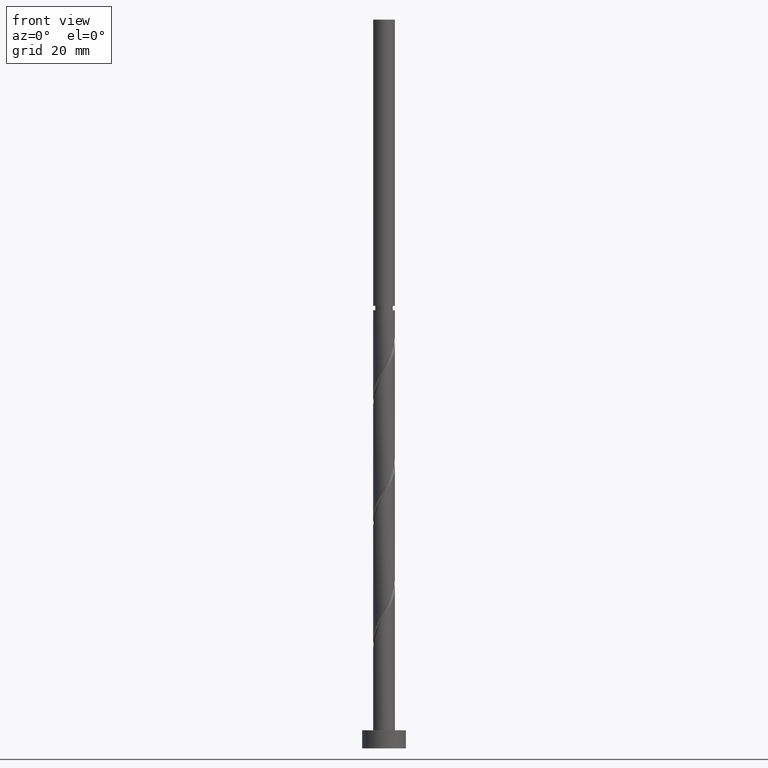
[diagram: clean part render]
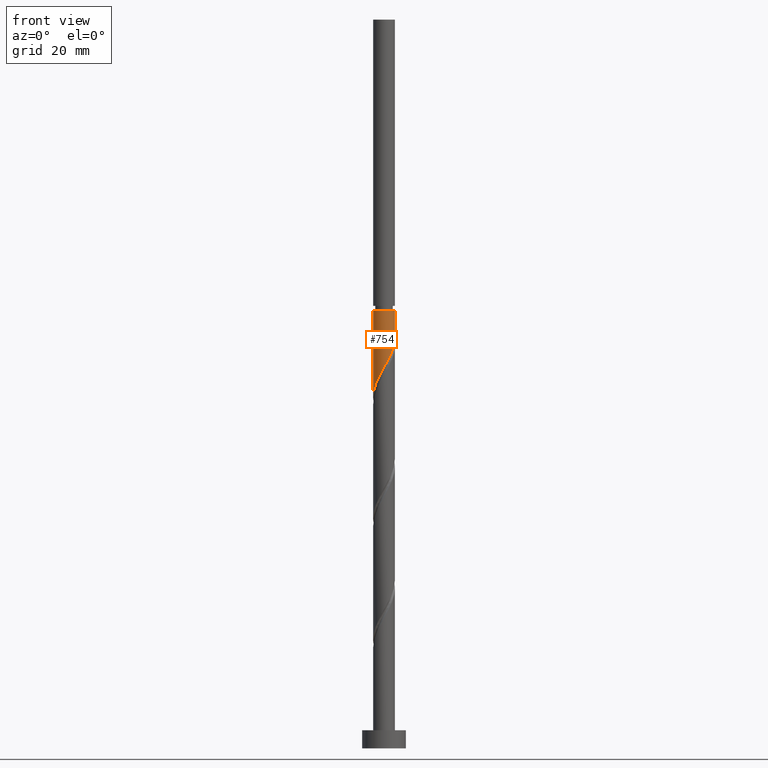
[diagram: same view with one face highlighted and labeled with its STEP entity id]
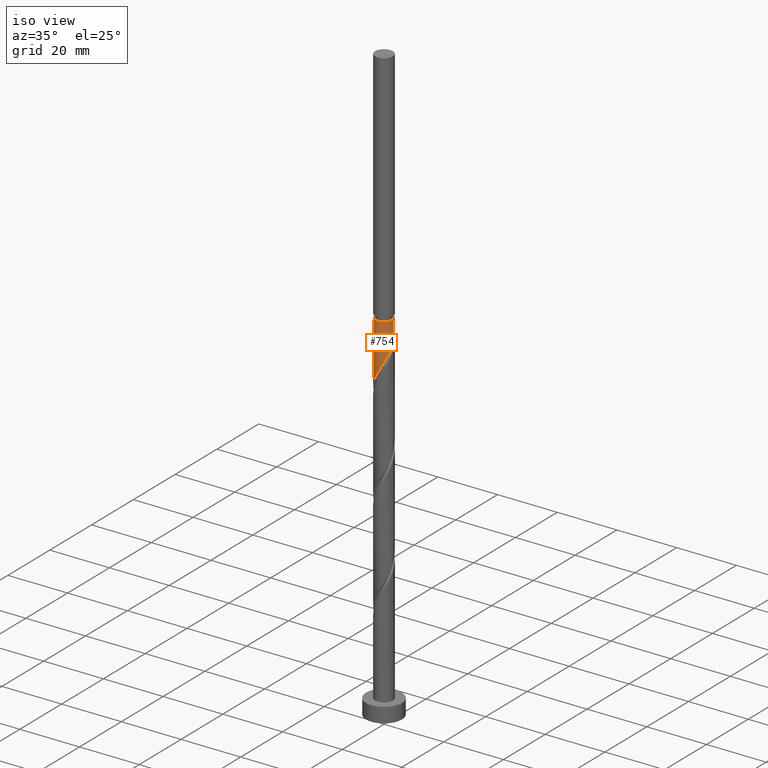
[diagram: same view with one face highlighted and labeled with its STEP entity id]
A machine part, front view. The second image highlights one B-rep face of the part: STEP entity #754.
A second angle (iso view) of the same face is appended — the face is thin or edge-on in the first view.
In plain terms, the highlighted cylindrical surface (edge-blend (fillet) strip) has radius 3 mm, axis along (-0, -0, -1).
Its self-contained STEP definition (entity closure, byte-faithful):
#58 = DIRECTION ( 'NONE',  ( -1.000000000000000000, 0.000000000000000000, 0.000000000000000000 ) ) ;
#120 = CARTESIAN_POINT ( 'NONE',  ( -3.000000000000001776, -0.09222585497301256929, 96.46558216390589280 ) ) ;
#129 = CARTESIAN_POINT ( 'NONE',  ( -2.282915221543595052, -1.986023542744032477, 100.0999629317788333 ) ) ;
#140 = CARTESIAN_POINT ( 'NONE',  ( 1.656756518304340231, -2.501031355072560025, 107.7388518206677190 ) ) ;
#183 = CARTESIAN_POINT ( 'NONE',  ( -3.000000000000000888, -2.123437390994080431E-15, 96.30241847587777215 ) ) ;
#218 = VECTOR ( 'NONE', #836, 1000.000000000000000 ) ;
#238 = CARTESIAN_POINT ( 'NONE',  ( 2.861404451302097751, -0.9840508051709188075, 111.2110740428899192 ) ) ;
#241 = CYLINDRICAL_SURFACE ( 'NONE', #308, 3.000000000000000444 ) ;
#274 = CARTESIAN_POINT ( 'NONE',  ( -3.000000000000000888, -2.123437390994080826E-15, 96.30241847587777215 ) ) ;
#277 = CIRCLE ( 'NONE', #861, 2.999999999999998224 ) ;
#306 = CARTESIAN_POINT ( 'NONE',  ( -3.000000000000000444, 0.000000000000000000, 200.0000000000000000 ) ) ;
#308 = AXIS2_PLACEMENT_3D ( 'NONE', #1176, #778, #511 ) ;
#508 = LINE ( 'NONE', #1209, #1399 ) ;
#511 = DIRECTION ( 'NONE',  ( -1.000000000000000000, 0.000000000000000000, 0.000000000000000000 ) ) ;
#515 = CARTESIAN_POINT ( 'NONE',  ( 2.939999999999999947, -0.5969924622639729561, 111.9055184873343620 ) ) ;
#534 = CARTESIAN_POINT ( 'NONE',  ( 0.1842775552007368534, -2.994334948306425659, 104.9610740428899334 ) ) ;
#542 = CARTESIAN_POINT ( 'NONE',  ( -2.501031355072559581, -1.656756518304340897, 99.40551848733436202 ) ) ;
#643 = CARTESIAN_POINT ( 'NONE',  ( 2.509213369244494007, -1.691106054833253269, 109.8221851540010334 ) ) ;
#649 = VERTEX_POINT ( 'NONE', #183 ) ;
#687 = VERTEX_POINT ( 'NONE', #732 ) ;
#720 = DIRECTION ( 'NONE',  ( -0.000000000000000000, -0.000000000000000000, -1.000000000000000000 ) ) ;
#732 = CARTESIAN_POINT ( 'NONE',  ( 3.000000000000000888, 1.315933031038584995E-15, 112.9690851425444436 ) ) ;
#754 = ADVANCED_FACE ( 'NONE', ( #1719 ), #241, .T. ) ;
#778 = DIRECTION ( 'NONE',  ( -0.000000000000000000, -0.000000000000000000, -1.000000000000000000 ) ) ;
#784 = CARTESIAN_POINT ( 'NONE',  ( 2.247618455994263353, -1.987010638188424494, 109.1277407095565906 ) ) ;
#798 = CARTESIAN_POINT ( 'NONE',  ( 0.9529893618115763410, -2.844610918258235976, 106.3499629317788475 ) ) ;
#809 = CARTESIAN_POINT ( 'NONE',  ( 1.986023542744032033, -2.282915221543595052, 108.4332962651121477 ) ) ;
#833 = ORIENTED_EDGE ( 'NONE', *, *, #1218, .T. ) ;
#836 = DIRECTION ( 'NONE',  ( -0.000000000000000000, -0.000000000000000000, -1.000000000000000000 ) ) ;
#849 = VERTEX_POINT ( 'NONE', #1736 ) ;
#861 = AXIS2_PLACEMENT_3D ( 'NONE', #1385, #720, #58 ) ;
#903 = CARTESIAN_POINT ( 'NONE',  ( -2.994334948306426547, -0.1842775552007377415, 96.62774070955660477 ) ) ;
#921 = CARTESIAN_POINT ( 'NONE',  ( 3.000000000000000888, 1.315933031038584995E-15, 112.9690851425444436 ) ) ;
#939 = CARTESIAN_POINT ( 'NONE',  ( -2.719147488601523666, -1.327489493864647985, 98.71107404288991916 ) ) ;
#1011 = EDGE_CURVE ( 'NONE', #849, #1243, #277, .T. ) ;
#1039 = CARTESIAN_POINT ( 'NONE',  ( -0.2099341193570294639, -3.018595548697902586, 104.2666295984454763 ) ) ;
#1054 = ORIENTED_EDGE ( 'NONE', *, *, #1011, .T. ) ;
#1176 = CARTESIAN_POINT ( 'NONE',  ( 0.000000000000000000, 0.000000000000000000, 200.0000000000000000 ) ) ;
#1177 = ORIENTED_EDGE ( 'NONE', *, *, #1486, .F. ) ;
#1182 = CARTESIAN_POINT ( 'NONE',  ( -2.970074347914949175, -0.5784892297585036980, 97.32218515400104764 ) ) ;
#1191 = DIRECTION ( 'NONE',  ( -0.000000000000000000, -0.000000000000000000, -1.000000000000000000 ) ) ;
#1201 = CARTESIAN_POINT ( 'NONE',  ( -1.987010638188424050, -2.247618455994263353, 100.7944073762232762 ) ) ;
#1209 = CARTESIAN_POINT ( 'NONE',  ( 3.000000000000000444, 3.673940397442060361E-16, 200.0000000000000000 ) ) ;
#1218 = EDGE_CURVE ( 'NONE', #1243, #649, #1512, .T. ) ;
#1243 = VERTEX_POINT ( 'NONE', #1377 ) ;
#1315 = CARTESIAN_POINT ( 'NONE',  ( -0.5969924622639728451, -2.939999999999999947, 103.5721851540010618 ) ) ;
#1333 = CARTESIAN_POINT ( 'NONE',  ( -0.9840508051709175863, -2.861404451302098639, 102.8777407095565906 ) ) ;
#1377 = CARTESIAN_POINT ( 'NONE',  ( -2.999999999999998224, 0.000000000000000000, 120.2388518206677048 ) ) ;
#1385 = CARTESIAN_POINT ( 'NONE',  ( 0.000000000000000000, 0.000000000000000000, 120.2388518206677048 ) ) ;
#1399 = VECTOR ( 'NONE', #1191, 1000.000000000000000 ) ;
#1410 = EDGE_LOOP ( 'NONE', ( #1605, #1054, #833, #1177 ) ) ;
#1463 = CARTESIAN_POINT ( 'NONE',  ( -2.844610918258235532, -0.9529893618115765630, 98.01662959844546208 ) ) ;
#1482 = CARTESIAN_POINT ( 'NONE',  ( -1.337578430002084984, -2.685308910273297212, 102.1832962651121477 ) ) ;
#1486 = EDGE_CURVE ( 'NONE', #687, #649, #1709, .T. ) ;
#1512 = LINE ( 'NONE', #306, #218 ) ;
#1561 = EDGE_CURVE ( 'NONE', #849, #687, #508, .T. ) ;
#1590 = CARTESIAN_POINT ( 'NONE',  ( 0.5784892297585031429, -2.970074347914949175, 105.6555184873343478 ) ) ;
#1605 = ORIENTED_EDGE ( 'NONE', *, *, #1561, .F. ) ;
#1608 = CARTESIAN_POINT ( 'NONE',  ( -1.691106054833252159, -2.509213369244495340, 101.4888518206677190 ) ) ;
#1709 =( BOUNDED_CURVE ( )  B_SPLINE_CURVE ( 2, ( #921, #1724, #515, #238, #1733, #643, #784, #809, #140, #1716, #798, #1590, #534, #1039, #1315, #1333, #1482, #1608, #1201, #129, #542, #939, #1463, #1182, #903, #120, #274 ),
 .UNSPECIFIED., .F., .T. ) 
 B_SPLINE_CURVE_WITH_KNOTS ( ( 3, 2, 2, 2, 2, 2, 2, 2, 2, 2, 2, 2, 2, 3 ),
 ( 0.3045317669814462391, 0.3125000000000000000, 0.3229166666666666852, 0.3333333333333333148, 0.3437500000000000000, 0.3541666666666666852, 0.3645833333333333148, 0.3750000000000000000, 0.3854166666666666852, 0.3958333333333333148, 0.4062500000000000000, 0.4166666666666666852, 0.4270833333333333148, 0.4295317669814464612 ),
 .UNSPECIFIED. ) 
 CURVE ( )  GEOMETRIC_REPRESENTATION_ITEM ( )  RATIONAL_B_SPLINE_CURVE ( ( 0.9062941362546323987, 0.9031415850403365919, 0.9090909090909118362, 0.9013135103398304260, 0.9090909090909118362, 0.9013135103398304260, 0.9090909090909118362, 0.9013135103398304260, 0.9090909090909118362, 0.9013135103398304260, 0.9090909090909118362, 0.9013135103398304260, 0.9090909090909118362, 0.9013135103398304260, 0.9090909090909118362, 0.9013135103398304260, 0.9090909090909118362, 0.9013135103398304260, 0.9090909090909118362, 0.9013135103398304260, 0.9090909090909118362, 0.9013135103398304260, 0.9090909090909118362, 0.9013135103398304260, 0.9090909090909118362, 0.9072628343904055592, 0.9062941362546321766 ) ) 
 REPRESENTATION_ITEM ( '' )  );
#1716 = CARTESIAN_POINT ( 'NONE',  ( 1.327489493864647985, -2.719147488601523666, 107.0444073762232620 ) ) ;
#1719 = FACE_OUTER_BOUND ( 'NONE', #1410, .T. ) ;
#1724 = CARTESIAN_POINT ( 'NONE',  ( 3.000000000000001332, -0.3015113445777635737, 112.4356587733551862 ) ) ;
#1733 = CARTESIAN_POINT ( 'NONE',  ( 2.685308910273296767, -1.337578430002086316, 110.5166295984455047 ) ) ;
#1736 = CARTESIAN_POINT ( 'NONE',  ( 2.999999999999998224, 3.673940397442058882E-16, 120.2388518206677048 ) ) ;